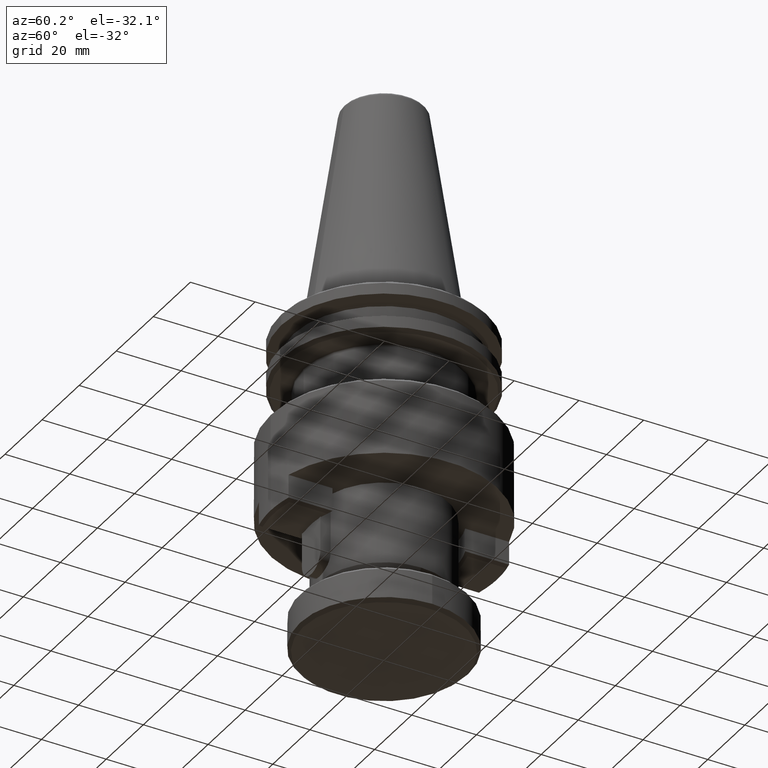
[diagram: clean part render]
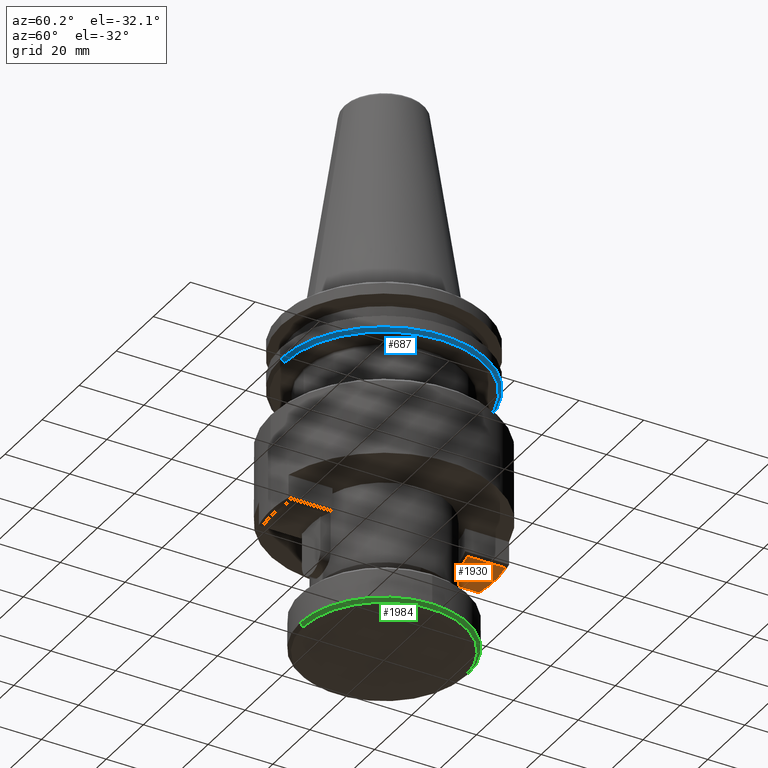
[diagram: same view with three faces highlighted in distinct colors, each labeled with its STEP entity id]
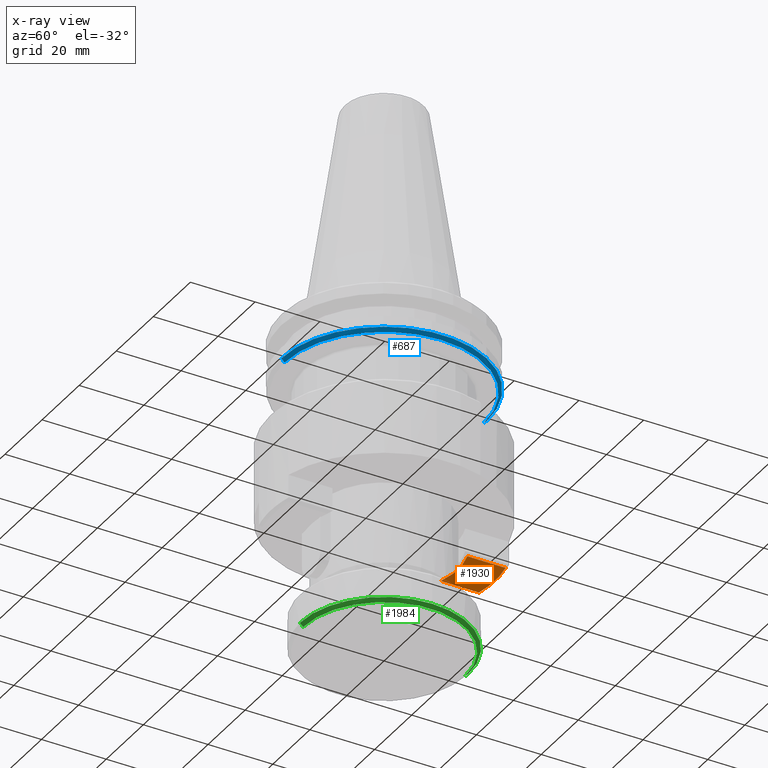
[diagram: x-ray of the same camera — body ghosted, the three highlighted faces saturated]
A machine part, auxiliary view with three faces highlighted in distinct colors.
The next image is the same camera in x-ray (body ghosted, the three faces saturated) — at least one of them is partly hidden behind the body in this view.
Their STEP definitions:

[orange] entity #1930 — the highlighted planar face has unit normal (0, 0, 1).
#57 = VERTEX_POINT ( 'NONE', #1031 ) ;
#174 = AXIS2_PLACEMENT_3D ( 'NONE', #1308, #1306, #1296 ) ;
#189 = CIRCLE ( 'NONE', #174, 34.20000000081784500 ) ;
#204 = ORIENTED_EDGE ( 'NONE', *, *, #2191, .F. ) ;
#247 = AXIS2_PLACEMENT_3D ( 'NONE', #1939, #1938, #1935 ) ;
#262 = VECTOR ( 'NONE', #1476, 1000.000000000000000 ) ;
#274 = VERTEX_POINT ( 'NONE', #1800 ) ;
#295 = LINE ( 'NONE', #1456, #262 ) ;
#318 = AXIS2_PLACEMENT_3D ( 'NONE', #2372, #2361, #2360 ) ;
#442 = VECTOR ( 'NONE', #1959, 1000.000000000000000 ) ;
#450 = CIRCLE ( 'NONE', #247, 22.79999999999999700 ) ;
#453 = ORIENTED_EDGE ( 'NONE', *, *, #2253, .F. ) ;
#625 = LINE ( 'NONE', #1898, #442 ) ;
#793 = FACE_OUTER_BOUND ( 'NONE', #2391, .T. ) ;
#1031 = CARTESIAN_POINT ( 'NONE',  ( 7.200000001137051500, 21.63330765213288100, -67.99999999974132000 ) ) ;
#1079 = CARTESIAN_POINT ( 'NONE',  ( -7.199999999974267900, 21.63330765305990900, -68.00000000018714300 ) ) ;
#1296 = DIRECTION ( 'NONE',  ( -1.000000000000000000, 0.0000000000000000000, 0.0000000000000000000 ) ) ;
#1306 = DIRECTION ( 'NONE',  ( 0.0000000000000000000, 0.0000000000000000000, 1.000000000000000000 ) ) ;
#1308 = CARTESIAN_POINT ( 'NONE',  ( 0.0000000000000000000, 0.0000000000000000000, -67.99999999918215100 ) ) ;
#1456 = CARTESIAN_POINT ( 'NONE',  ( 7.200000001572703000, 34.27540015400000300, -68.00000000000000000 ) ) ;
#1476 = DIRECTION ( 'NONE',  ( -0.0000000000000000000, 1.000000000000000000, -0.0000000000000000000 ) ) ;
#1800 = CARTESIAN_POINT ( 'NONE',  ( 7.200000000700266700, 33.43351611849787000, -67.99999999918216500 ) ) ;
#1879 = VERTEX_POINT ( 'NONE', #2505 ) ;
#1898 = CARTESIAN_POINT ( 'NONE',  ( -7.200000000322829900, 34.27540015400000300, -68.00000000000000000 ) ) ;
#1930 = ADVANCED_FACE ( 'NONE', ( #793 ), #2365, .F. ) ;
#1935 = DIRECTION ( 'NONE',  ( 1.000000000000000000, 0.0000000000000000000, 0.0000000000000000000 ) ) ;
#1938 = DIRECTION ( 'NONE',  ( -7.608436297996768700E-017, 0.0000000000000000000, -1.000000000000000000 ) ) ;
#1939 = CARTESIAN_POINT ( 'NONE',  ( 3.354424544098815200E-026, 0.0000000000000000000, -67.99999999999998600 ) ) ;
#1959 = DIRECTION ( 'NONE',  ( 0.0000000000000000000, -1.000000000000000000, 0.0000000000000000000 ) ) ;
#2191 = EDGE_CURVE ( 'NONE', #2567, #57, #450, .T. ) ;
#2253 = EDGE_CURVE ( 'NONE', #1879, #2567, #625, .T. ) ;
#2360 = DIRECTION ( 'NONE',  ( -1.000000000000000000, 0.0000000000000000000, 0.0000000000000000000 ) ) ;
#2361 = DIRECTION ( 'NONE',  ( 0.0000000000000000000, 0.0000000000000000000, 1.000000000000000000 ) ) ;
#2365 = PLANE ( 'NONE',  #318 ) ;
#2372 = CARTESIAN_POINT ( 'NONE',  ( 7.200000000000002000, 34.27540015400000300, -68.00000000000000000 ) ) ;
#2391 = EDGE_LOOP ( 'NONE', ( #2510, #2556, #204, #453 ) ) ;
#2415 = EDGE_CURVE ( 'NONE', #57, #274, #295, .T. ) ;
#2478 = EDGE_CURVE ( 'NONE', #274, #1879, #189, .T. ) ;
#2505 = CARTESIAN_POINT ( 'NONE',  ( -7.200000000322829900, 33.43351611863245400, -67.99999999942966200 ) ) ;
#2510 = ORIENTED_EDGE ( 'NONE', *, *, #2478, .F. ) ;
#2556 = ORIENTED_EDGE ( 'NONE', *, *, #2415, .F. ) ;
#2567 = VERTEX_POINT ( 'NONE', #1079 ) ;

[blue] entity #687 — the highlighted conical surface has half-angle 45 deg.
#36 = CIRCLE ( 'NONE', #852, 30.75000000000086000 ) ;
#110 = VERTEX_POINT ( 'NONE', #1200 ) ;
#124 = VERTEX_POINT ( 'NONE', #990 ) ;
#326 = CIRCLE ( 'NONE', #961, 31.75000000000000000 ) ;
#444 = VECTOR ( 'NONE', #1382, 1000.000000000000000 ) ;
#483 = LINE ( 'NONE', #1217, #444 ) ;
#628 = CONICAL_SURFACE ( 'NONE', #1077, 30.75000000000086000, 0.7853981633974482800 ) ;
#679 = FACE_OUTER_BOUND ( 'NONE', #909, .T. ) ;
#687 = ADVANCED_FACE ( 'NONE', ( #679 ), #628, .T. ) ;
#711 = CARTESIAN_POINT ( 'NONE',  ( 0.0000000000000000000, -5.684954029402187100E-027, -18.10000000000083600 ) ) ;
#820 = DIRECTION ( 'NONE',  ( -0.0000000000000000000, 6.500853926474174700E-029, 1.000000000000000000 ) ) ;
#852 = AXIS2_PLACEMENT_3D ( 'NONE', #1372, #1319, #1429 ) ;
#906 = CARTESIAN_POINT ( 'NONE',  ( 0.0000000000000000000, -5.749962568666873000E-027, -19.09999999999997700 ) ) ;
#909 = EDGE_LOOP ( 'NONE', ( #933, #1257, #2408, #943 ) ) ;
#933 = ORIENTED_EDGE ( 'NONE', *, *, #1363, .T. ) ;
#943 = ORIENTED_EDGE ( 'NONE', *, *, #999, .F. ) ;
#961 = AXIS2_PLACEMENT_3D ( 'NONE', #711, #1015, #2096 ) ;
#990 = CARTESIAN_POINT ( 'NONE',  ( 0.0000000000000000000, -31.75000000000000000, -18.10000000000083600 ) ) ;
#999 = EDGE_CURVE ( 'NONE', #1923, #124, #483, .T. ) ;
#1015 = DIRECTION ( 'NONE',  ( -0.0000000000000000000, 6.500853926474174700E-029, 1.000000000000000000 ) ) ;
#1074 = EDGE_CURVE ( 'NONE', #124, #1716, #326, .T. ) ;
#1077 = AXIS2_PLACEMENT_3D ( 'NONE', #906, #820, #1186 ) ;
#1186 = DIRECTION ( 'NONE',  ( 0.0000000000000000000, -1.000000000000000000, 0.0000000000000000000 ) ) ;
#1200 = CARTESIAN_POINT ( 'NONE',  ( 3.827021247335531800E-015, 30.75000000000086000, -19.09999999999997700 ) ) ;
#1217 = CARTESIAN_POINT ( 'NONE',  ( 0.0000000000000000000, -30.75000000000086000, -19.09999999999997700 ) ) ;
#1257 = ORIENTED_EDGE ( 'NONE', *, *, #1647, .T. ) ;
#1319 = DIRECTION ( 'NONE',  ( -0.0000000000000000000, 6.500853926474174700E-029, 1.000000000000000000 ) ) ;
#1363 = EDGE_CURVE ( 'NONE', #1923, #110, #36, .T. ) ;
#1372 = CARTESIAN_POINT ( 'NONE',  ( 0.0000000000000000000, -5.749962568666873000E-027, -19.09999999999997700 ) ) ;
#1382 = DIRECTION ( 'NONE',  ( 0.0000000000000000000, -0.7071067811865474600, 0.7071067811865475700 ) ) ;
#1429 = DIRECTION ( 'NONE',  ( 0.0000000000000000000, -1.000000000000000000, 0.0000000000000000000 ) ) ;
#1615 = CARTESIAN_POINT ( 'NONE',  ( 3.765788907378217000E-015, 30.75000000000086000, -19.09999999999997700 ) ) ;
#1647 = EDGE_CURVE ( 'NONE', #110, #1716, #1752, .T. ) ;
#1662 = VECTOR ( 'NONE', #2549, 1000.000000000000000 ) ;
#1716 = VERTEX_POINT ( 'NONE', #2401 ) ;
#1752 = LINE ( 'NONE', #1615, #1662 ) ;
#1923 = VERTEX_POINT ( 'NONE', #2399 ) ;
#2096 = DIRECTION ( 'NONE',  ( 0.0000000000000000000, -1.000000000000000000, 0.0000000000000000000 ) ) ;
#2399 = CARTESIAN_POINT ( 'NONE',  ( 0.0000000000000000000, -30.75000000000086000, -19.09999999999997700 ) ) ;
#2401 = CARTESIAN_POINT ( 'NONE',  ( 3.888253587292846500E-015, 31.75000000000000000, -18.10000000000083600 ) ) ;
#2408 = ORIENTED_EDGE ( 'NONE', *, *, #1074, .F. ) ;
#2549 = DIRECTION ( 'NONE',  ( 8.659560562354931600E-017, 0.7071067811865474600, 0.7071067811865475700 ) ) ;

[green] entity #1984 — the highlighted conical surface has half-angle 45 deg.
#19 = ORIENTED_EDGE ( 'NONE', *, *, #582, .F. ) ;
#233 = DIRECTION ( 'NONE',  ( 0.0000000000000000000, -1.000000000000000000, 0.0000000000000000000 ) ) ;
#256 = DIRECTION ( 'NONE',  ( 0.0000000000000000000, -2.668805347656626700E-016, 1.000000000000000000 ) ) ;
#260 = CARTESIAN_POINT ( 'NONE',  ( 0.0000000000000000000, 2.668805347656628700E-016, -100.9999999999999700 ) ) ;
#302 = AXIS2_PLACEMENT_3D ( 'NONE', #2344, #2289, #2288 ) ;
#308 = DIRECTION ( 'NONE',  ( 0.0000000000000000000, -0.7071067811865477900, 0.7071067811865473500 ) ) ;
#341 = CARTESIAN_POINT ( 'NONE',  ( 3.184081677783117800E-015, 25.99999999999999600, -99.99999999999994300 ) ) ;
#361 = DIRECTION ( 'NONE',  ( 8.659560562354932900E-017, 0.7071067811865472400, 0.7071067811865479100 ) ) ;
#456 = AXIS2_PLACEMENT_3D ( 'NONE', #2246, #2224, #2350 ) ;
#490 = VERTEX_POINT ( 'NONE', #1288 ) ;
#514 = CARTESIAN_POINT ( 'NONE',  ( 0.0000000000000000000, -25.99999999999999600, -99.99999999999997200 ) ) ;
#554 = VERTEX_POINT ( 'NONE', #858 ) ;
#582 = EDGE_CURVE ( 'NONE', #1766, #1520, #821, .T. ) ;
#597 = EDGE_LOOP ( 'NONE', ( #1654, #698, #1640, #19, #1644 ) ) ;
#598 = AXIS2_PLACEMENT_3D ( 'NONE', #260, #256, #233 ) ;
#657 = CONICAL_SURFACE ( 'NONE', #302, 25.99999999999999600, 0.7853981633974482800 ) ;
#698 = ORIENTED_EDGE ( 'NONE', *, *, #1557, .T. ) ;
#738 = FACE_OUTER_BOUND ( 'NONE', #597, .T. ) ;
#776 = DIRECTION ( 'NONE',  ( 1.000000000000000000, 0.0000000000000000000, 0.0000000000000000000 ) ) ;
#783 = DIRECTION ( 'NONE',  ( -0.0000000000000000000, -0.0000000000000000000, 1.000000000000000000 ) ) ;
#802 = CARTESIAN_POINT ( 'NONE',  ( 0.0000000000000000000, 0.0000000000000000000, -99.99999999999994300 ) ) ;
#817 = CARTESIAN_POINT ( 'NONE',  ( 25.99999999999999600, 0.0000000000000000000, -99.99999999999994300 ) ) ;
#821 = CIRCLE ( 'NONE', #1165, 25.99999999999999600 ) ;
#858 = CARTESIAN_POINT ( 'NONE',  ( 3.122849337825751000E-015, 24.99999999999999300, -100.9999999999999700 ) ) ;
#1165 = AXIS2_PLACEMENT_3D ( 'NONE', #802, #783, #776 ) ;
#1288 = CARTESIAN_POINT ( 'NONE',  ( 0.0000000000000000000, -24.99999999999999300, -100.9999999999999700 ) ) ;
#1503 = CIRCLE ( 'NONE', #456, 25.99999999999999600 ) ;
#1520 = VERTEX_POINT ( 'NONE', #817 ) ;
#1557 = EDGE_CURVE ( 'NONE', #554, #2077, #2058, .T. ) ;
#1558 = EDGE_CURVE ( 'NONE', #490, #1766, #2085, .T. ) ;
#1562 = EDGE_CURVE ( 'NONE', #490, #554, #2054, .T. ) ;
#1640 = ORIENTED_EDGE ( 'NONE', *, *, #1717, .F. ) ;
#1644 = ORIENTED_EDGE ( 'NONE', *, *, #1558, .F. ) ;
#1654 = ORIENTED_EDGE ( 'NONE', *, *, #1562, .T. ) ;
#1717 = EDGE_CURVE ( 'NONE', #1520, #2077, #1503, .T. ) ;
#1766 = VERTEX_POINT ( 'NONE', #1823 ) ;
#1823 = CARTESIAN_POINT ( 'NONE',  ( 0.0000000000000000000, -26.00000000000002100, -99.99999999999994300 ) ) ;
#1984 = ADVANCED_FACE ( 'NONE', ( #738 ), #657, .T. ) ;
#1999 = VECTOR ( 'NONE', #308, 999.9999999999998900 ) ;
#2037 = VECTOR ( 'NONE', #361, 999.9999999999998900 ) ;
#2054 = CIRCLE ( 'NONE', #598, 24.99999999999999300 ) ;
#2058 = LINE ( 'NONE', #341, #2037 ) ;
#2077 = VERTEX_POINT ( 'NONE', #2170 ) ;
#2085 = LINE ( 'NONE', #514, #1999 ) ;
#2170 = CARTESIAN_POINT ( 'NONE',  ( 3.184081677783117800E-015, 25.99999999999999600, -99.99999999999994300 ) ) ;
#2224 = DIRECTION ( 'NONE',  ( -0.0000000000000000000, -0.0000000000000000000, 1.000000000000000000 ) ) ;
#2246 = CARTESIAN_POINT ( 'NONE',  ( 0.0000000000000000000, 0.0000000000000000000, -99.99999999999994300 ) ) ;
#2288 = DIRECTION ( 'NONE',  ( 0.0000000000000000000, -1.000000000000000000, -5.337610695313253400E-016 ) ) ;
#2289 = DIRECTION ( 'NONE',  ( 0.0000000000000000000, -2.668805347656626700E-016, 1.000000000000000000 ) ) ;
#2344 = CARTESIAN_POINT ( 'NONE',  ( 0.0000000000000000000, 0.0000000000000000000, -99.99999999999995700 ) ) ;
#2350 = DIRECTION ( 'NONE',  ( 1.000000000000000000, 0.0000000000000000000, 0.0000000000000000000 ) ) ;